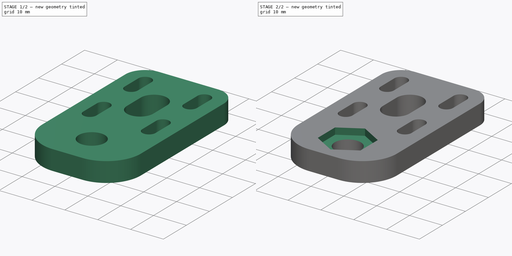
[diagram: build sequence overview — one tinted view per stage of 2, left to right]
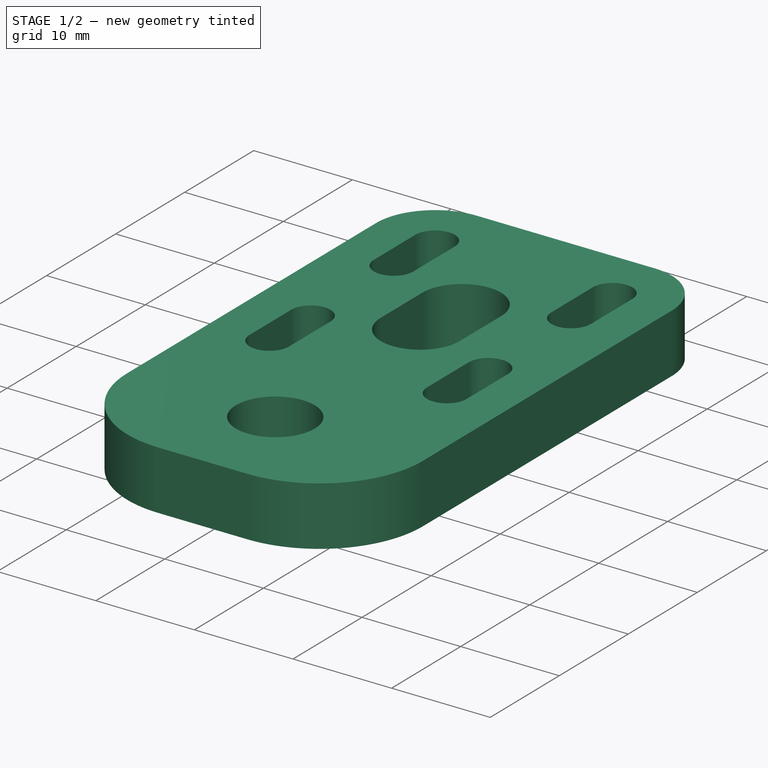
[diagram: stage 1 of 2 — iso view after this stage's code; geometry added in this stage tinted green]
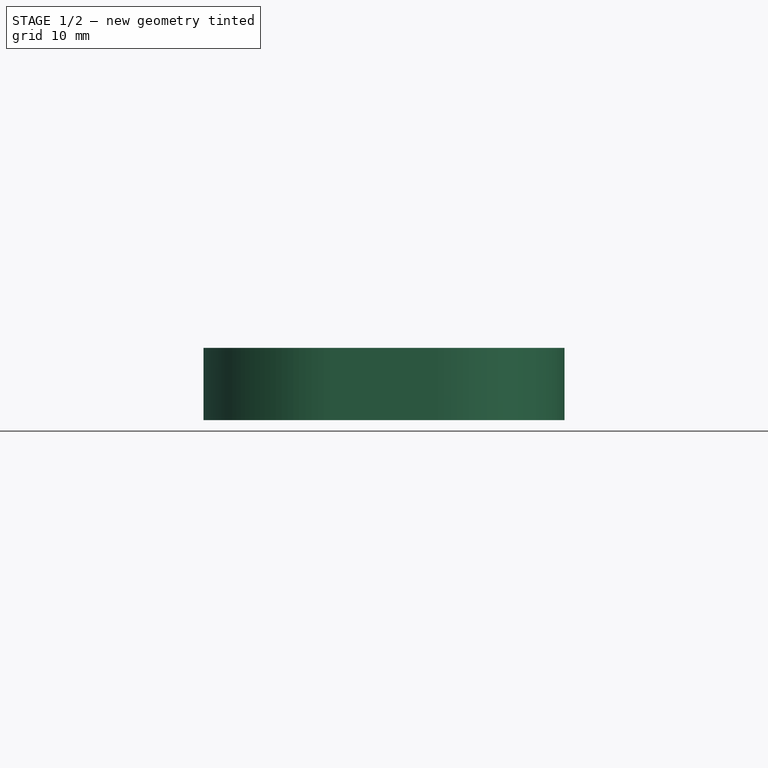
[diagram: stage 1 of 2 — front view after this stage's code; geometry added in this stage tinted green]
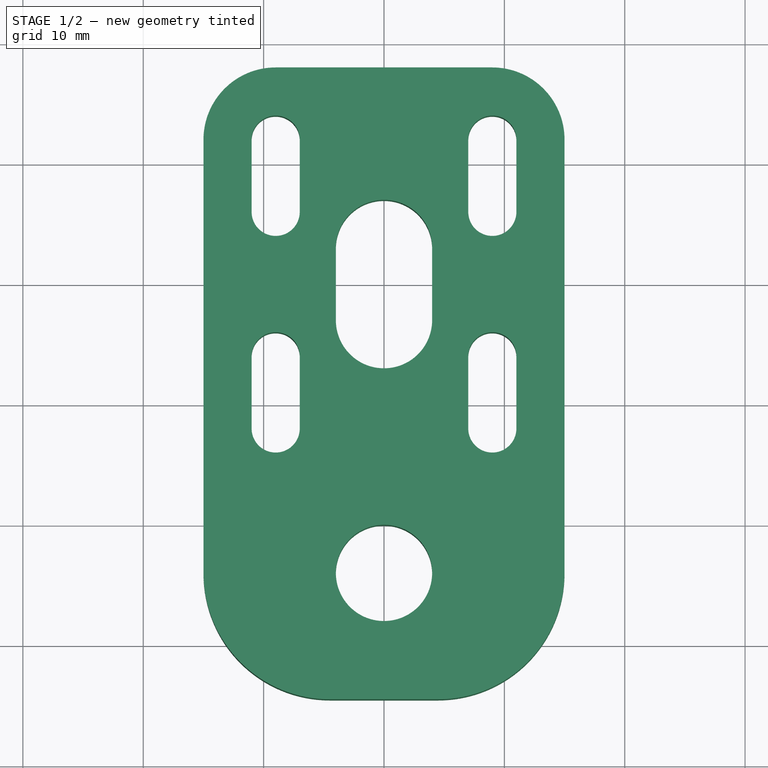
[diagram: stage 1 of 2 — top view after this stage's code; geometry added in this stage tinted green]
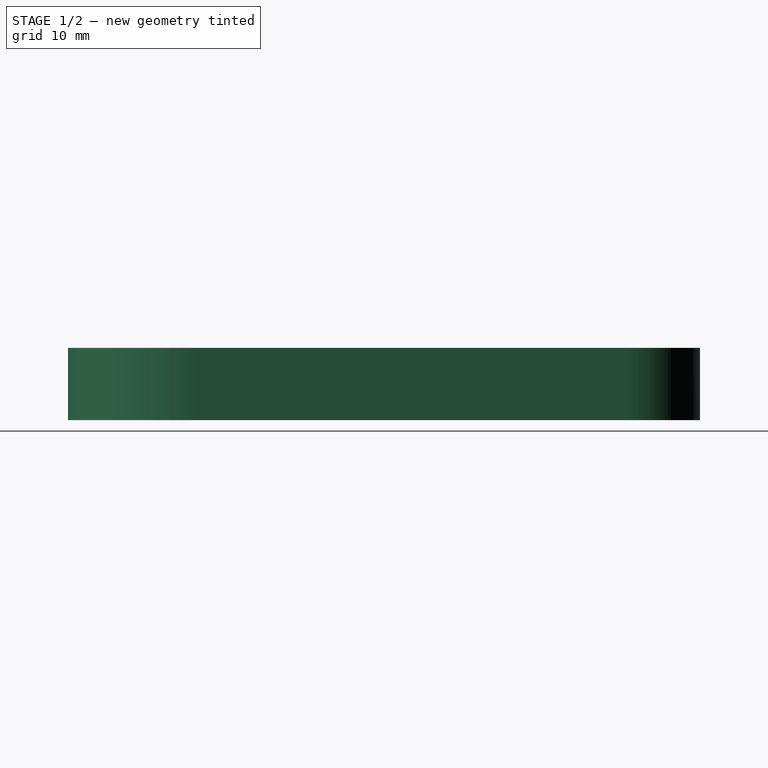
[diagram: stage 1 of 2 — right view after this stage's code; geometry added in this stage tinted green]
FCSTD DOCUMENT  (FreeCAD 0.19R24291 (Git))
Label: Крепление пневмоцилиндра
License: All rights reserved
LicenseURL: http://en.wikipedia.org/wiki/All_rights_reserved
objects: Sketcher::SketchObject×2, PartDesign::Pad×1, PartDesign::Pocket×1, PartDesign::Body×1
note: 7 computed .brp shape members not serialized (recipe doc carries the construction recipe); baked Part::Feature solids carry a one-line shape summary decoded from their .brp

FEATURE [Sketcher::SketchObject] Sketch
  FullyConstrained = false
  MapMode = 5
  Support = -> [XY_Plane]
  sketch-geometry (47):
    g0: ArcOfCircle CenterX=9 CenterY=6 CenterZ=0 NormalX=0 NormalY=0 NormalZ=1 AngleXU=0 Radius=2 StartAngle=3.14159 EndAngle=6.28319
    g1: ArcOfCircle CenterX=9 CenterY=12 CenterZ=0 NormalX=0 NormalY=0 NormalZ=1 AngleXU=0 Radius=2 StartAngle=0 EndAngle=3.14159
    g2: LineSegment StartX=11 StartY=6 StartZ=0 EndX=11 EndY=12 EndZ=0
    g3: LineSegment StartX=7 StartY=6 StartZ=0 EndX=7 EndY=12 EndZ=0
    g4: ArcOfCircle CenterX=-9 CenterY=6 CenterZ=0 NormalX=0 NormalY=0 NormalZ=1 AngleXU=0 Radius=2 StartAngle=3.14159 EndAngle=6.28319
    g5: ArcOfCircle CenterX=-9 CenterY=12 CenterZ=0 NormalX=0 NormalY=0 NormalZ=1 AngleXU=0 Radius=2 StartAngle=2e-16 EndAngle=3.14159
    g6: LineSegment StartX=-7 StartY=6 StartZ=0 EndX=-7 EndY=12 EndZ=0
    g7: LineSegment StartX=-11 StartY=6 StartZ=0 EndX=-11 EndY=12 EndZ=0
    g8: ArcOfCircle CenterX=9 CenterY=-12 CenterZ=0 NormalX=0 NormalY=0 NormalZ=1 AngleXU=0 Radius=2 StartAngle=3.14159 EndAngle=6.28319
    g9: ArcOfCircle CenterX=9 CenterY=-6 CenterZ=0 NormalX=0 NormalY=0 NormalZ=1 AngleXU=0 Radius=2 StartAngle=1e-16 EndAngle=3.14159
    g10: LineSegment StartX=11 StartY=-12 StartZ=0 EndX=11 EndY=-6 EndZ=0
    g11: LineSegment StartX=7 StartY=-12 StartZ=0 EndX=7 EndY=-6 EndZ=0
    g12: ArcOfCircle CenterX=-9 CenterY=-12 CenterZ=0 NormalX=0 NormalY=0 NormalZ=1 AngleXU=0 Radius=2 StartAngle=3.14159 EndAngle=6.28319
    g13: ArcOfCircle CenterX=-9 CenterY=-6 CenterZ=0 NormalX=0 NormalY=0 NormalZ=1 AngleXU=0 Radius=2 StartAngle=1e-16 EndAngle=3.14159
    g14: LineSegment StartX=-7 StartY=-12 StartZ=0 EndX=-7 EndY=-6 EndZ=0
    g15: LineSegment StartX=-11 StartY=-12 StartZ=0 EndX=-11 EndY=-6 EndZ=0
    g16: LineSegment StartX=-9 StartY=4 StartZ=0 EndX=-9 EndY=9 EndZ=0
    g17: LineSegment StartX=-9 StartY=9 StartZ=0 EndX=-9 EndY=14 EndZ=0
    g18: LineSegment StartX=-9 StartY=-4 StartZ=0 EndX=-9 EndY=-9 EndZ=0
    g19: LineSegment StartX=-9 StartY=-9 StartZ=0 EndX=-9 EndY=-14 EndZ=0
    g20: LineSegment StartX=-9 StartY=18 StartZ=0 EndX=9 EndY=18 EndZ=0
    g21: LineSegment StartX=15 StartY=12 StartZ=0 EndX=15 EndY=-24 EndZ=0
    g22: LineSegment StartX=4.49445 StartY=-34.5056 StartZ=0 EndX=-4.49445 EndY=-34.5056 EndZ=0
    g23: LineSegment StartX=-15 StartY=-24 StartZ=0 EndX=-15 EndY=12 EndZ=0
    g24: Circle CenterX=0 CenterY=-24 CenterZ=0 NormalX=0 NormalY=0 NormalZ=1 AngleXU=0 Radius=4
    g25: LineSegment StartX=6.5 StartY=-20.2472 StartZ=0 EndX=0 EndY=-16.4944 EndZ=0
    g26: LineSegment StartX=0 StartY=-16.4944 StartZ=0 EndX=-6.5 EndY=-20.2472 EndZ=0
    g27: LineSegment StartX=-6.5 StartY=-20.2472 StartZ=0 EndX=-6.5 EndY=-27.7528 EndZ=0
    g28: LineSegment StartX=-6.5 StartY=-27.7528 StartZ=0 EndX=0 EndY=-31.5056 EndZ=0
    g29: LineSegment StartX=0 StartY=-31.5056 StartZ=0 EndX=6.5 EndY=-27.7528 EndZ=0
    g30: LineSegment StartX=6.5 StartY=-27.7528 StartZ=0 EndX=6.5 EndY=-20.2472 EndZ=0
    g31: Circle CenterX=0 CenterY=-24 CenterZ=0 NormalX=0 NormalY=0 NormalZ=1 AngleXU=0 Radius=7.50555
    g32: LineSegment StartX=-9 StartY=6 StartZ=0 EndX=0 EndY=6 EndZ=0
    g33: LineSegment StartX=0 StartY=6 StartZ=0 EndX=9 EndY=6 EndZ=0
    g34: LineSegment StartX=-15 StartY=17.835 StartZ=0 EndX=0 EndY=17.835 EndZ=0
    g35: LineSegment StartX=0 StartY=17.835 StartZ=0 EndX=15 EndY=17.835 EndZ=0
    g36: ArcOfCircle CenterX=-9 CenterY=12 CenterZ=0 NormalX=0 NormalY=0 NormalZ=1 AngleXU=0 Radius=6 StartAngle=1.5708 EndAngle=3.14159
    g37: ArcOfCircle CenterX=9 CenterY=12 CenterZ=0 NormalX=0 NormalY=0 NormalZ=1 AngleXU=0 Radius=6 StartAngle=0 EndAngle=1.5708
    g38: ArcOfCircle CenterX=4.49445 CenterY=-24 CenterZ=0 NormalX=0 NormalY=0 NormalZ=1 AngleXU=0 Radius=10.5056 StartAngle=4.71239 EndAngle=6.28319
    g39: ArcOfCircle CenterX=-4.49445 CenterY=-24 CenterZ=0 NormalX=0 NormalY=0 NormalZ=1 AngleXU=0 Radius=10.5056 StartAngle=3.14159 EndAngle=4.71239
    g40: LineSegment StartX=9 StartY=6 StartZ=0 EndX=-9 EndY=-6 EndZ=0
    g41: ArcOfCircle CenterX=0 CenterY=-3 CenterZ=0 NormalX=0 NormalY=0 NormalZ=1 AngleXU=0 Radius=4 StartAngle=3.14159 EndAngle=6.28319
    g42: ArcOfCircle CenterX=4.7e-15 CenterY=3 CenterZ=0 NormalX=0 NormalY=0 NormalZ=1 AngleXU=0 Radius=4 StartAngle=-1.8e-15 EndAngle=3.14159
    g43: LineSegment StartX=4 StartY=-3 StartZ=0 EndX=4 EndY=3 EndZ=0
    g44: LineSegment StartX=-4 StartY=-3 StartZ=0 EndX=-4 EndY=3 EndZ=0
    g45: LineSegment StartX=0 StartY=-3 StartZ=0 EndX=0 EndY=0 EndZ=0
    g46: LineSegment StartX=0 StartY=0 StartZ=0 EndX=4.7e-15 EndY=3 EndZ=0
  constraints (119):
    c: Tangent(g0,g3) = 1.5708
    c: Tangent(g0,g2) = -1.5708
    c: Tangent(g2,g1) = -1.5708
    c: Tangent(g3,g1) = 1.5708
    c: Vertical(g2)
    c: Equal(g0,g1)
    c: Tangent(g4,g7) = 1.5708
    c: Tangent(g4,g6) = -1.5708
    c: Tangent(g6,g5) = -1.5708
    c: Tangent(g7,g5) = 1.5708
    c: Vertical(g6)
    c: Equal(g4,g5)
    c: Diameter(g0) = 4
    c: Distance(g0,g1) = 6
    c: Equal(g0,g4)
    c: Equal(g2,g6)
    c: Tangent(g8,g11) = 1.5708
    c: Tangent(g8,g10) = -1.5708
    c: Tangent(g10,g9) = -1.5708
    c: Tangent(g11,g9) = 1.5708
    c: Vertical(g10)
    c: Equal(g8,g9)
    c: Tangent(g12,g15) = 1.5708
    c: Tangent(g12,g14) = -1.5708
    c: Tangent(g14,g13) = -1.5708
    c: Tangent(g15,g13) = 1.5708
    c: Vertical(g14)
    c: Equal(g12,g13)
    c: Equal(g11,g3)
    c: Equal(g15,g2)
    c: Equal(g12,g8)
    c: Equal(g8,g0)
    c: Distance(g0,g4) = 18
    c: Vertical(g4,g13)
    c: Horizontal(g5,g1)
    c: Horizontal(g13,g9)
    c: PointOnObject(g16,g4)
    c: Vertical(g16)
    c: Coincident(g17,g16)
    c: Vertical(g17)
    c: PointOnObject(g5,g17)
    c: Equal(g17,g16)
    c: PointOnObject(g18,g13)
    c: Vertical(g18)
    c: Coincident(g19,g18)
    c: Vertical(g19)
    c: Equal(g19,g18)
    c: PointOnObject(g13,g18)
    c: Distance(g16,g18) = 18
    c: PointOnObject(g17,g5)
    c: PointOnObject(g19,g12)
    c: Vertical(g9,g0)
    c: Horizontal(g20)
    c: Horizontal(g22)
    c: Vertical(g21)
    c: Vertical(g23)
    c: PointOnObject(g24,g-2)
    c: DistanceY(g24,g18) = 15
    c: Diameter(g24) = 8
    c: Coincident(g25,g26)
    c: Coincident(g26,g27)
    c: Coincident(g27,g28)
    c: Coincident(g28,g29)
    c: Coincident(g29,g30)
    c: Coincident(g30,g25)
    c: Equal(g25, g26-g30) x5
    c: PointOnObject(g25,g31)
    c: PointOnObject(g26,g31)
    c: PointOnObject(g27,g31)
    c: PointOnObject(g28,g31)
    c: PointOnObject(g29,g31)
    c: PointOnObject(g30,g31)
    c: Coincident(g31,g24)
    c: Distance(g25,g26) = 13
    c: Coincident(g32,g4)
    c: PointOnObject(g32,g-2)
    c: Horizontal(g32)
    c: Coincident(g33,g32)
    c: Coincident(g33,g0)
    c: Equal(g33,g32)
    c: PointOnObject(g34,g23)
    c: PointOnObject(g34,g-2)
    c: Horizontal(g34)
    c: Coincident(g35,g34)
    c: PointOnObject(g35,g21)
    c: Horizontal(g35)
    c: Equal(g35,g34)
    c: Distance(g35,g34) = 30
    c: Tangent(g20,g36) = 1.5708
    c: Tangent(g23,g36) = 1.5708
    c: Coincident(g36,g5)
    c: Tangent(g20,g37) = 1.5708
    c: Tangent(g21,g37) = 1.5708
    c: Equal(g37,g36)
    c: Vertical(g30)
    c: Distance(g28,g22) = 3
    c: Tangent(g22,g38) = 1.5708
    c: Tangent(g21,g38) = 1.5708
    c: Tangent(g22,g39) = 1.5708
    c: Tangent(g23,g39) = 1.5708
    c: Horizontal(g38,g24)
    c: Horizontal(g39,g24)
    c: Coincident(g40,g0)
    c: Coincident(g40,g13)
    c: PointOnObject(g-1,g40)
    c: Tangent(g41,g44) = 1.5708
    c: Tangent(g41,g43) = -1.5708
    c: Tangent(g43,g42) = -1.5708
    c: Tangent(g44,g42) = 1.5708
    c: Vertical(g43)
    c: Equal(g41,g42)
    c: Distance(g41,g42) = 6
    c: Diameter(g41) = 8
    c: Coincident(g45,g41)
    c: Coincident(g45,g-1)
    c: Vertical(g45)
    c: Coincident(g46,g-1)
    c: Coincident(g46,g42)
    c: Equal(g46,g45)
FEATURE [PartDesign::Pad] Pad
  Direction = (1,1,1)
  Length = 6
  Length2 = 100
  Profile = -> Sketch
  Type = 0
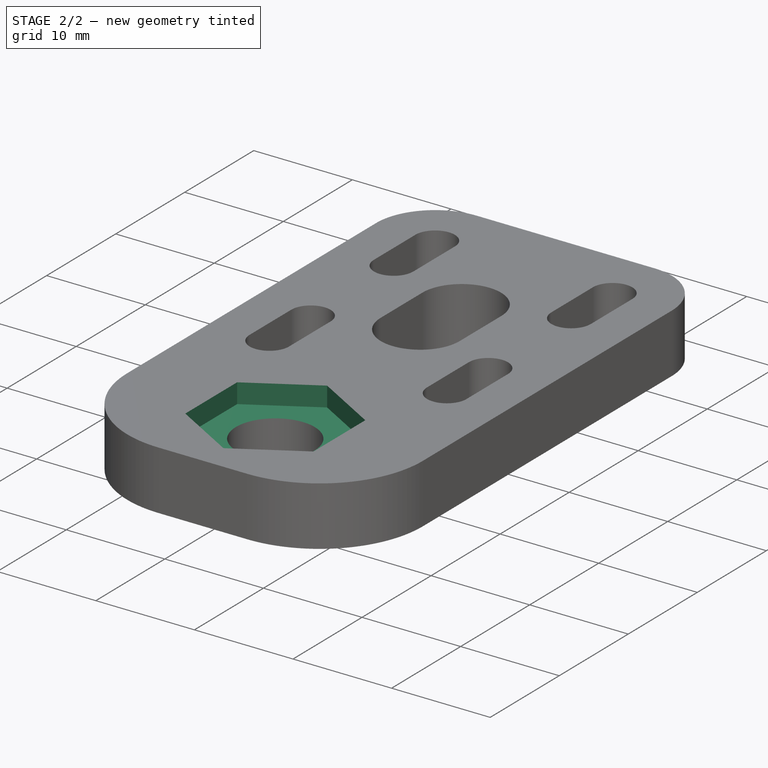
[diagram: stage 2 of 2 — iso view after this stage's code; geometry added in this stage tinted green]
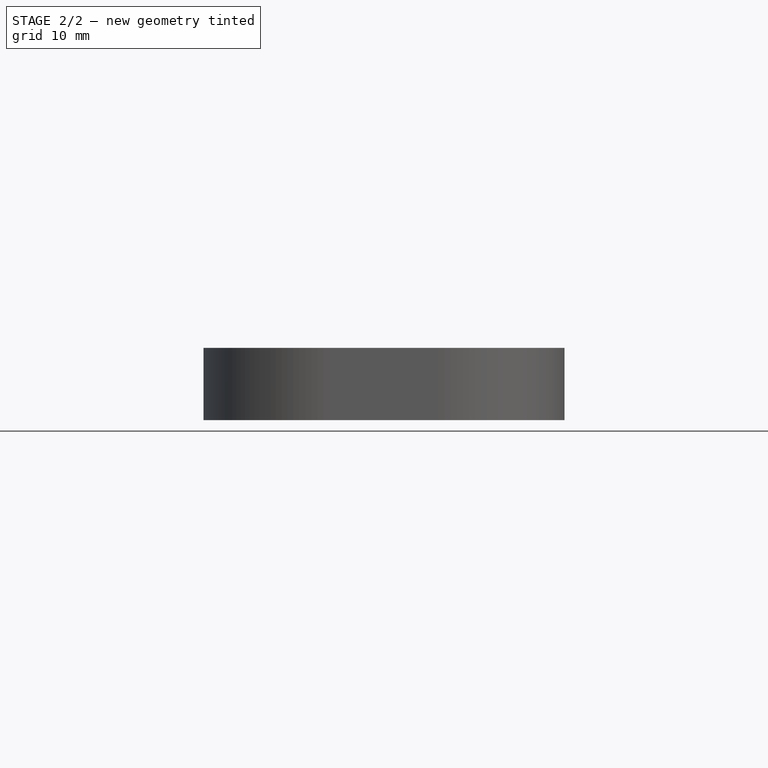
[diagram: stage 2 of 2 — front view after this stage's code; geometry added in this stage tinted green]
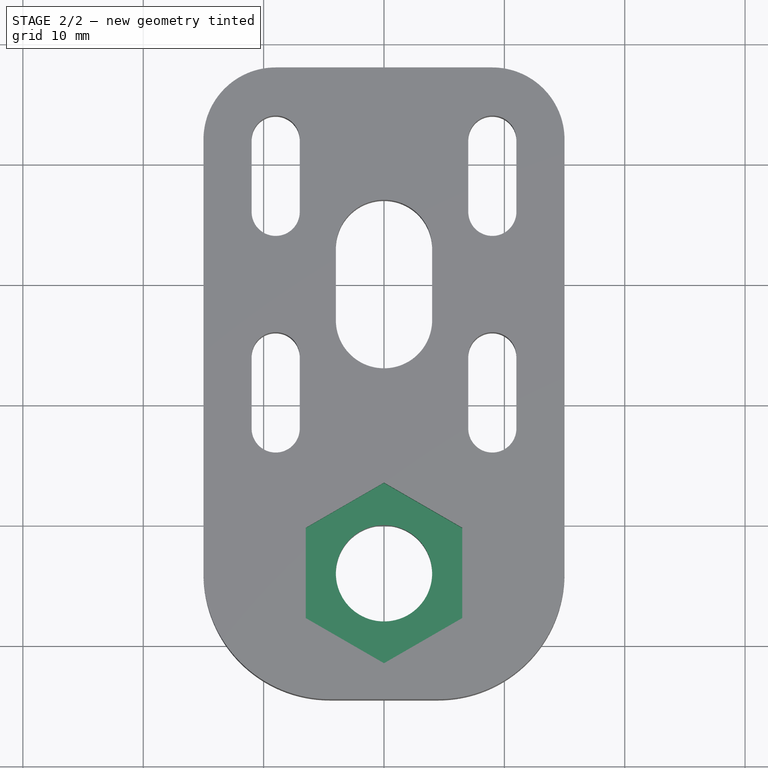
[diagram: stage 2 of 2 — top view after this stage's code; geometry added in this stage tinted green]
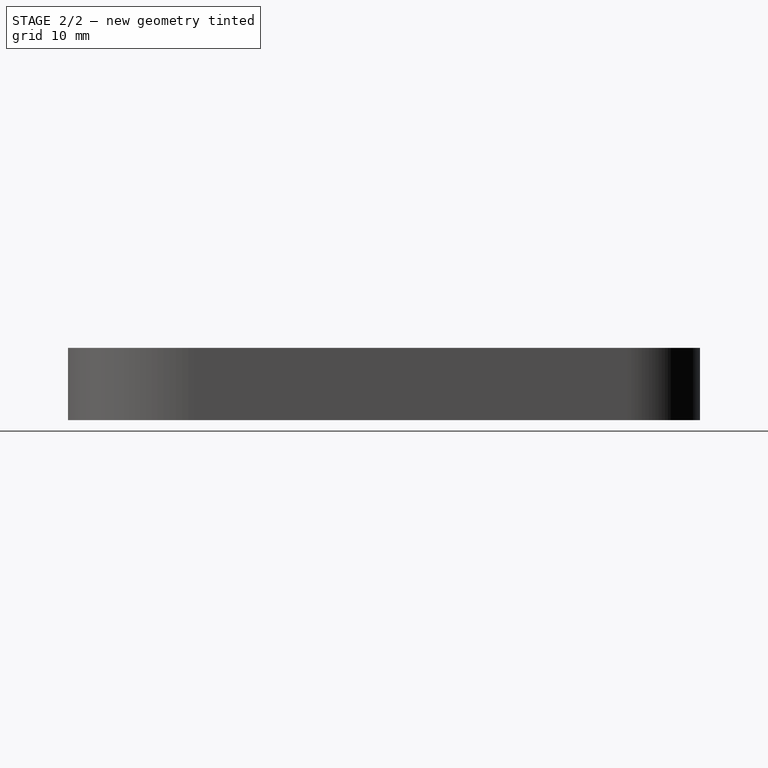
[diagram: stage 2 of 2 — right view after this stage's code; geometry added in this stage tinted green]
FEATURE [Sketcher::SketchObject] Sketch001
  ExternalGeometry = -> [Pad]
  FullyConstrained = true
  MapMode = 5
  Placement = pos=(0,0,6) rot=(0,0,1;0rad)
  Support = -> [Pad]
  sketch-geometry (7):
    g0: LineSegment StartX=6.5 StartY=-20.2472 StartZ=0 EndX=-9e-16 EndY=-16.4944 EndZ=0
    g1: LineSegment StartX=-7e-16 StartY=-16.4944 StartZ=0 EndX=-6.5 EndY=-20.2472 EndZ=0
    g2: LineSegment StartX=-6.5 StartY=-20.2472 StartZ=0 EndX=-6.5 EndY=-27.7528 EndZ=0
    g3: LineSegment StartX=-6.5 StartY=-27.7528 StartZ=0 EndX=-9e-16 EndY=-31.5056 EndZ=0
    g4: LineSegment StartX=-9e-16 StartY=-31.5056 StartZ=0 EndX=6.5 EndY=-27.7528 EndZ=0
    g5: LineSegment StartX=6.5 StartY=-27.7528 StartZ=0 EndX=6.5 EndY=-20.2472 EndZ=0
    g6: Circle CenterX=0 CenterY=-24 CenterZ=0 NormalX=0 NormalY=0 NormalZ=1 AngleXU=0 Radius=7.50555
  constraints (16):
    c: Coincident(g0,g1)
    c: Coincident(g1,g2)
    c: Coincident(g2,g3)
    c: Coincident(g3,g4)
    c: Coincident(g4,g5)
    c: Coincident(g5,g0)
    c: Equal(g0, g1-g5) x5
    c: PointOnObject(g0,g6)
    c: PointOnObject(g1,g6)
    c: PointOnObject(g2,g6)
    c: PointOnObject(g3,g6)
    c: PointOnObject(g4,g6)
    c: PointOnObject(g5,g6)
    c: Vertical(g5)
    c: Distance(g4,g2) = 13
    c: Coincident(g6,g-3)
FEATURE [PartDesign::Pocket] Pocket
  BaseFeature = -> Pad
  Length = 2
  Length2 = 100
  Profile = -> Sketch001
  Type = 0
FEATURE [PartDesign::Body] Body
  Group = -> [Sketch,Pad,Sketch001,Pocket]
  Origin = -> Origin
  Tip = -> Pocket
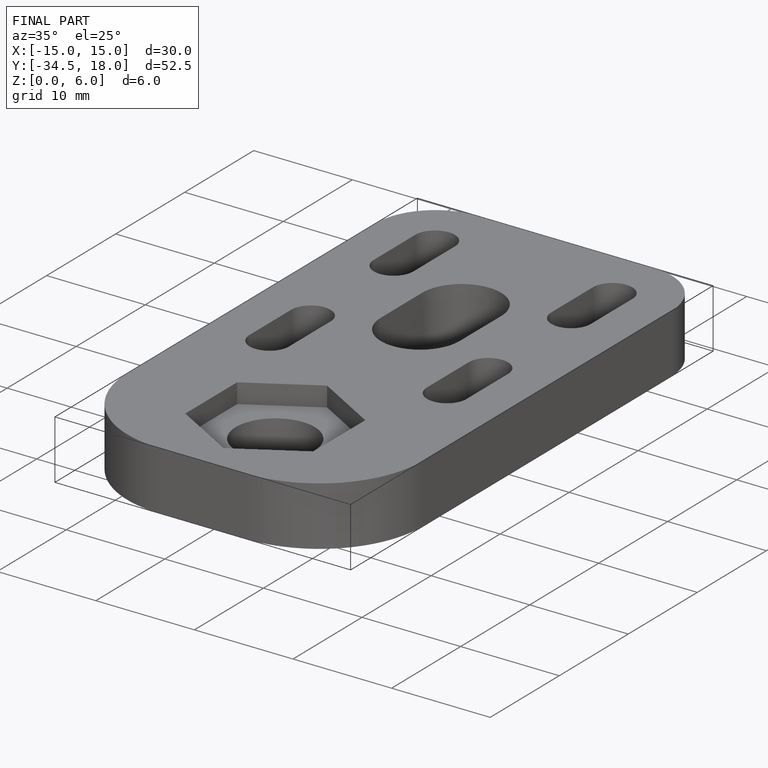
[diagram: finished part — iso view with bounding-box wireframe]
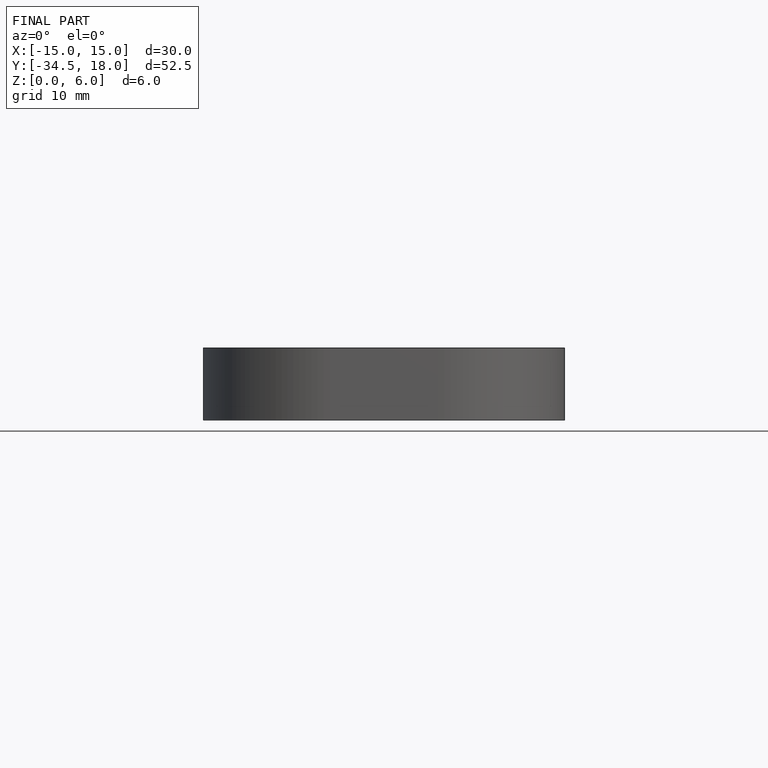
[diagram: finished part — front view with bounding-box wireframe]
